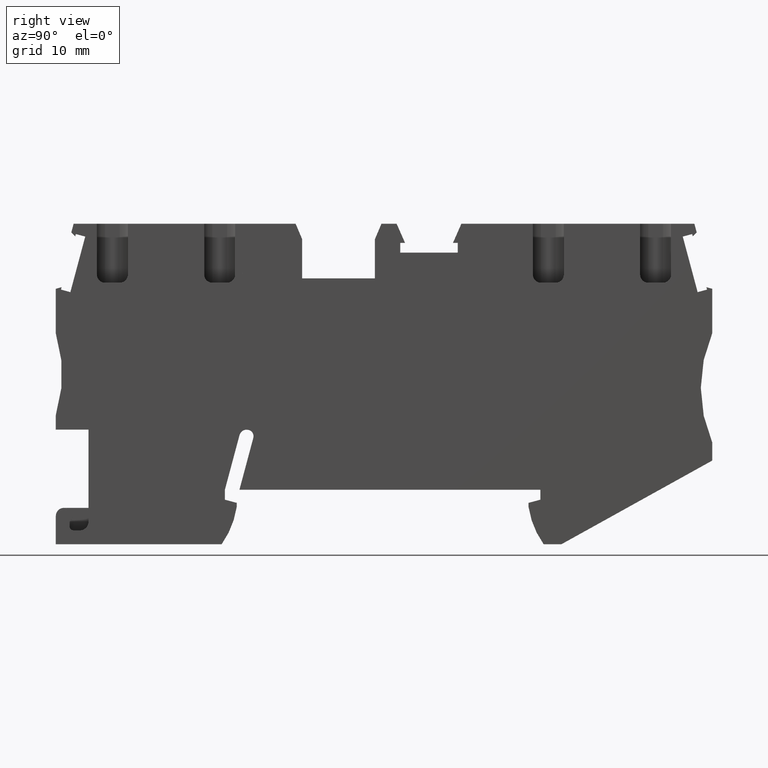
[diagram: clean part render]
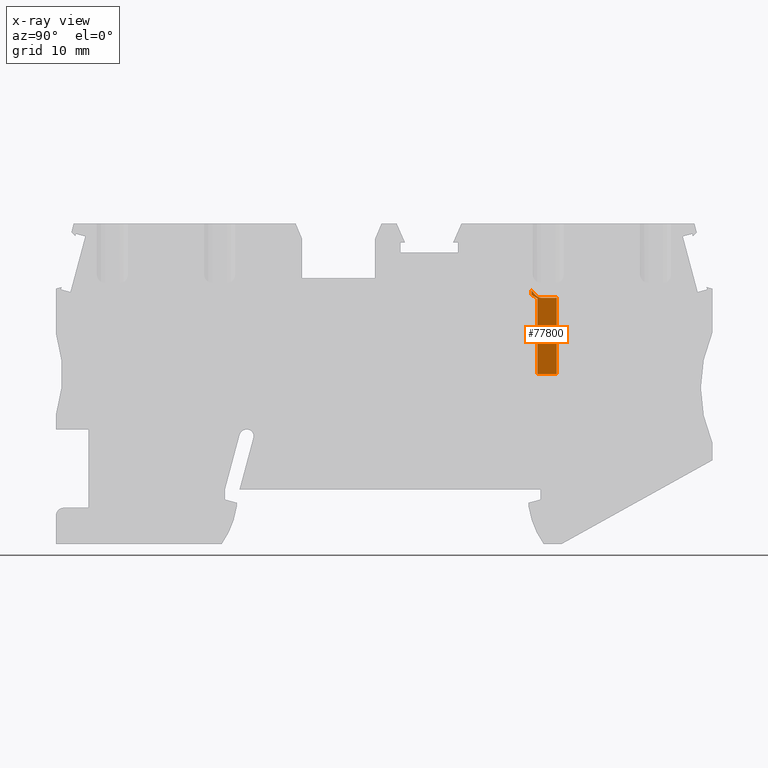
[diagram: x-ray — body ghosted, one internal face saturated and labeled with its STEP entity id]
A machine part, right view, then the same camera in x-ray: the body is ghosted and one INTERNAL B-rep face — a face not visible from any outside direction — is saturated and labeled: STEP entity #77800.
In plain terms, the highlighted planar face has unit normal (-1, -0, 0).
Its self-contained STEP definition (entity closure, byte-faithful):
#72460=CARTESIAN_POINT('',(48.2531802202803,27.0186885666316,
-0.949999999999982));
#72470=DIRECTION('',(0.992546151641337,0.121869343405031,
6.12323399573707E-17));
#72480=VECTOR('',#72470,1.);
#72490=LINE('',#72460,#72480);
#72500=CARTESIAN_POINT('',(50.5237340482183,27.2974775214011,
-0.949999999999982));
#72510=VERTEX_POINT('',#72500);
#72520=CARTESIAN_POINT('',(52.1118078908458,27.4924684708493,
-0.949999999999986));
#72530=VERTEX_POINT('',#72520);
#72540=EDGE_CURVE('',#72510,#72530,#72490,.T.);
#72850=CARTESIAN_POINT('',(50.3232043482887,28.9306608667258,
-1.89999999999998));
#72860=DIRECTION('',(-0.12186934340515,0.992546151641322,0.));
#72870=DIRECTION('',(6.07759233806769E-17,7.46234506576463E-18,1.));
#72880=AXIS2_PLACEMENT_3D('',#72850,#72860,#72870);
#72890=CONICAL_SURFACE('',#72880,1.9,0.523598775598299);
#73530=CARTESIAN_POINT('',(49.4442329776317,27.4735237091144,
-0.949999999999986));
#73540=VERTEX_POINT('',#73530);
#73590=CARTESIAN_POINT('',(52.7847745119688,0.266996196464501,
-0.949999999999983));
#73600=DIRECTION('',(-0.121869343405273,0.992546151641307,
2.6600174019898E-29));
#73610=VECTOR('',#73600,1.);
#73620=LINE('',#73590,#73610);
#73630=CARTESIAN_POINT('',(49.3831996676534,27.9706001261128,
-0.949999999999998));
#73640=VERTEX_POINT('',#73630);
#73650=EDGE_CURVE('',#73540,#73640,#73620,.T.);
#74500=CARTESIAN_POINT('',(50.1085498896161,27.1915379099944,
-0.949999999999986));
#74510=VERTEX_POINT('',#74500);
#74540=CARTESIAN_POINT('',(70.5695188718006,18.5063718618117,
-0.949999999999985));
#74550=DIRECTION('',(-0.92050485345244,0.390731128489274,
-5.25079780903808E-17));
#74560=VECTOR('',#74550,1.);
#74570=LINE('',#74540,#74560);
#74580=EDGE_CURVE('',#74510,#73540,#74570,.T.);
#74800=CARTESIAN_POINT('',(53.2601333610945,19.1657966601058,
-0.949999999999986));
#74810=VERTEX_POINT('',#74800);
#74860=CARTESIAN_POINT('',(68.8035129598135,21.0742836990817,
-0.949999999999986));
#74870=DIRECTION('',(0.992546151641322,0.121869343405148,
5.55111512312578E-17));
#74880=VECTOR('',#74870,1.);
#74890=LINE('',#74860,#74880);
#74900=CARTESIAN_POINT('',(51.1261589070501,18.903777543788,
-0.949999999999986));
#74910=VERTEX_POINT('',#74900);
#74920=EDGE_CURVE('',#74910,#74810,#74890,.T.);
#75480=CARTESIAN_POINT('',(53.4051156287255,0.343164508095485,
-0.949999999999986));
#75490=DIRECTION('',(-0.121869343405147,0.992546151641322,
9.12890793639505E-31));
#75500=VECTOR('',#75490,1.);
#75510=LINE('',#75480,#75500);
#75520=EDGE_CURVE('',#74910,#74510,#75510,.T.);
#75780=CARTESIAN_POINT('',(51.9112781909165,29.1256518161743,
-1.89999999999999));
#75790=DIRECTION('',(-0.121869343405146,0.992546151641322,0.));
#75800=DIRECTION('',(6.07759233806799E-17,7.46234506576581E-18,-1.));
#75810=AXIS2_PLACEMENT_3D('',#75780,#75790,#75800);
#75820=CONICAL_SURFACE('',#75810,1.9,0.5235987755983);
#76600=CARTESIAN_POINT('',(52.2341477215153,27.5217791388469,
-0.949999999999985));
#76610=VERTEX_POINT('',#76600);
#76640=CARTESIAN_POINT('',(52.4070479572577,26.113619721594,
-0.949999999999982));
#76650=DIRECTION('',(-0.121869343405264,0.992546151641308,
1.34044724128993E-31));
#76660=VECTOR('',#76650,1.);
#76670=LINE('',#76640,#76660);
#76680=EDGE_CURVE('',#74810,#76610,#76670,.T.);
#76800=CARTESIAN_POINT('',(48.2450128077607,25.6025860633,
-0.949999999999986));
#76810=DIRECTION('',(6.07759233806814E-17,7.46234506576586E-18,-1.));
#76820=DIRECTION('',(-0.992546151641308,-0.121869343405264,
-6.12323399573707E-17));
#76830=AXIS2_PLACEMENT_3D('',#76800,#76810,#76820);
#76840=PLANE('',#76830);
#76850=ORIENTED_EDGE('',*,*,#74580,.T.);
#76860=ORIENTED_EDGE('',*,*,#75520,.T.);
#76870=ORIENTED_EDGE('',*,*,#74920,.F.);
#76880=ORIENTED_EDGE('',*,*,#76680,.F.);
#76890=CARTESIAN_POINT('',(52.2341477215153,27.5217791388469,
-0.949999999999985));
#76900=CARTESIAN_POINT('',(52.2243286048633,27.5182571221954,
-0.949999999999985));
#76910=CARTESIAN_POINT('',(52.2143913061904,27.514979035826,
-0.94999999999999));
#76920=CARTESIAN_POINT('',(52.204351278239,27.5119665771281,
-0.94999999999999));
#76930=CARTESIAN_POINT('',(52.1943113548638,27.5089541498077,
-0.94999999999999));
#76940=CARTESIAN_POINT('',(52.184169070554,27.5062075615477,
-0.94999999999999));
#76950=CARTESIAN_POINT('',(52.1739445115164,27.50374473364,
-0.94999999999999));
#76960=CARTESIAN_POINT('',(52.1637200161161,27.5012819210608,
-0.94999999999999));
#76970=CARTESIAN_POINT('',(52.1534137223108,27.4991030547796,
-0.949999999999986));
#76980=CARTESIAN_POINT('',(52.1430491622221,27.4972205694267,
-0.949999999999986));
#76990=CARTESIAN_POINT('',(52.1326846238507,27.4953380880183,
-0.949999999999986));
#77000=CARTESIAN_POINT('',(52.1222623727399,27.4937521198183,
-0.949999999999986));
#77010=CARTESIAN_POINT('',(52.1118078908461,27.4924684708495,
-0.949999999999986));
#77020=B_SPLINE_CURVE_WITH_KNOTS('',3,(#76890,#76900,#76910,#76920,
#76930,#76940,#76950,#76960,#76970,#76980,#76990,#77000,#77010),
.UNSPECIFIED.,.F.,.F.,(4,3,3,3,4),(0.,0.0313742554317692,
0.0628769771654618,0.0944578973491981,0.126062875051535),.UNSPECIFIED.);
#77030=SURFACE_CURVE('',#77020,(#76840,#75820),.CURVE_3D.);
#77040=EDGE_CURVE('',#76610,#72530,#77030,.T.);
#77050=ORIENTED_EDGE('',*,*,#77040,.F.);
#77060=ORIENTED_EDGE('',*,*,#72540,.T.);
#77070=CARTESIAN_POINT('',(48.2450128077607,25.6025860633,
-0.949999999999982));
#77080=DIRECTION('',(6.07759233806814E-17,7.46234506576586E-18,-1.));
#77090=DIRECTION('',(-0.992546151641308,-0.121869343405264,
-6.12323399573707E-17));
#77100=AXIS2_PLACEMENT_3D('',#77070,#77080,#77090);
#77110=PLANE('',#77100);
#77120=CARTESIAN_POINT('',(49.3831996676534,27.9706001261128,
-0.949999999999982));
#77130=CARTESIAN_POINT('',(49.4032418743686,27.9504905522849,
-0.949999999999982));
#77140=CARTESIAN_POINT('',(49.4233912809308,27.9304916691446,
-0.949999999999983));
#77150=CARTESIAN_POINT('',(49.4436606879015,27.9106200651534,
-0.949999999999983));
#77160=CARTESIAN_POINT('',(49.4639300921487,27.8907484638323,
-0.949999999999983));
#77170=CARTESIAN_POINT('',(49.4843195087491,27.8710040413209,
-0.949999999999983));
#77180=CARTESIAN_POINT('',(49.5048445407737,27.8514062865202,
-0.949999999999983));
#77190=CARTESIAN_POINT('',(49.525369560351,27.8318085436044,
-0.949999999999983));
#77200=CARTESIAN_POINT('',(49.5460302228499,27.8123573263032,
-0.949999999999982));
#77210=CARTESIAN_POINT('',(49.5668454140725,27.7930760841352,
-0.949999999999982));
#77220=CARTESIAN_POINT('',(49.5876605772581,27.773794867938,
-0.949999999999982));
#77230=CARTESIAN_POINT('',(49.6086303222485,27.7546834252601,
-0.949999999999983));
#77240=CARTESIAN_POINT('',(49.6297773704294,27.7357706423969,
-0.949999999999983));
#77250=CARTESIAN_POINT('',(49.6509292953259,27.7168534980614,
-0.949999999999983));
#77260=CARTESIAN_POINT('',(49.6722355038122,27.6981546954581,
-0.950000000020112));
#77270=CARTESIAN_POINT('',(49.6937955058014,27.6796486818954,
-0.950000000020112));
#77280=CARTESIAN_POINT('',(49.7153547711985,27.6611433005861,
-0.950000000020112));
#77290=CARTESIAN_POINT('',(49.7371537385636,27.6428437104652,
-0.949999999999983));
#77300=CARTESIAN_POINT('',(49.7591990701041,27.6248213360605,
-0.949999999999983));
#77310=CARTESIAN_POINT('',(49.7812444695167,27.6067989061694,
-0.949999999999983));
#77320=CARTESIAN_POINT('',(49.8035363151553,27.5890532986218,
-0.949999999999982));
#77330=CARTESIAN_POINT('',(49.8260912506335,27.571663284138,
-0.949999999999982));
#77340=CARTESIAN_POINT('',(49.8486462400517,27.5542732280661,
-0.949999999999982));
#77350=CARTESIAN_POINT('',(49.8714646480005,27.5372380414438,
-0.949999999999982));
#77360=CARTESIAN_POINT('',(49.8945756582543,27.5206478176664,
-0.949999999999982));
#77370=CARTESIAN_POINT('',(49.917686626267,27.5040576242118,
-0.949999999999982));
#77380=CARTESIAN_POINT('',(49.9410909938208,27.4879111712678,
-0.949999999999982));
#77390=CARTESIAN_POINT('',(49.9648319735351,27.4723172026655,
-0.949999999999982));
#77400=CARTESIAN_POINT('',(49.988572679284,27.4567234140138,
-0.949999999999982));
#77410=CARTESIAN_POINT('',(50.0126516608409,27.4416801804745,
-0.949999999999982));
#77420=CARTESIAN_POINT('',(50.0371252024779,27.4273266935671,
-0.949999999999982));
#77430=CARTESIAN_POINT('',(50.0493620164955,27.4201499247775,
-0.949999999999982));
#77440=CARTESIAN_POINT('',(50.0616979201272,27.4131459973636,
-0.950000000003034));
#77450=CARTESIAN_POINT('',(50.0741410101666,27.4063363198144,
-0.950000000003034));
#77460=CARTESIAN_POINT('',(50.0865829995554,27.3995272446136,
-0.950000000003034));
#77470=CARTESIAN_POINT('',(50.0991306104522,27.3929126394726,
-0.950000000003997));
#77480=CARTESIAN_POINT('',(50.1118309169296,27.3864993241653,
-0.950000000003997));
#77490=CARTESIAN_POINT('',(50.1372231232961,27.3736769386531,
-0.950000000003997));
#77500=CARTESIAN_POINT('',(50.16315135342,27.361698963764,
-0.949999999999982));
#77510=CARTESIAN_POINT('',(50.1895386290441,27.3508820907408,
-0.949999999999982));
#77520=CARTESIAN_POINT('',(50.2159260120822,27.3400651736855,
-0.949999999999982));
#77530=CARTESIAN_POINT('',(50.2427738821678,27.3304093663007,
-0.949999999999983));
#77540=CARTESIAN_POINT('',(50.2700104098669,27.3222412470516,
-0.949999999999983));
#77550=CARTESIAN_POINT('',(50.2836287136532,27.3181571754501,
-0.949999999999983));
#77560=CARTESIAN_POINT('',(50.2973442602815,27.3144451372266,
-0.950000000000281));
#77570=CARTESIAN_POINT('',(50.3111479980604,27.3111460526035,
-0.950000000000281));
#77580=CARTESIAN_POINT('',(50.3249506179006,27.307847235167,
-0.950000000000281));
#77590=CARTESIAN_POINT('',(50.3388324941843,27.3049614152967,
-0.950000000000099));
#77600=CARTESIAN_POINT('',(50.3528779525696,27.3025169575386,
-0.950000000000099));
#77610=CARTESIAN_POINT('',(50.3669147973373,27.3000739988861,
-0.950000000000099));
#77620=CARTESIAN_POINT('',(50.381074964911,27.2980819212438,
-0.950000000000762));
#77630=CARTESIAN_POINT('',(50.3953076685453,27.2965906139734,
-0.950000000000762));
#77640=CARTESIAN_POINT('',(50.4095402512969,27.2950993193692,
-0.950000000000762));
#77650=CARTESIAN_POINT('',(50.4238438479212,27.2941092797338,
-0.950000000000354));
#77660=CARTESIAN_POINT('',(50.4381611169577,27.2936555584943,
-0.950000000000354));
#77670=CARTESIAN_POINT('',(50.4524784010741,27.293201836777,
-0.950000000000354));
#77680=CARTESIAN_POINT('',(50.466807292874,27.2932846902456,
-0.950000000000008));
#77690=CARTESIAN_POINT('',(50.4810891252333,27.2939198954276,
-0.950000000000008));
#77700=CARTESIAN_POINT('',(50.495371137557,27.2945551086138,
-0.950000000000008));
#77710=CARTESIAN_POINT('',(50.5096037331313,27.2957425368677,
-0.949999999999982));
#77720=CARTESIAN_POINT('',(50.5237340482183,27.2974775214011,
-0.949999999999982));
#77730=B_SPLINE_CURVE_WITH_KNOTS('',3,(#77120,#77130,#77140,#77150,
#77160,#77170,#77180,#77190,#77200,#77210,#77220,#77230,#77240,#77250,
#77260,#77270,#77280,#77290,#77300,#77310,#77320,#77330,#77340,#77350,
#77360,#77370,#77380,#77390,#77400,#77410,#77420,#77430,#77440,#77450,
#77460,#77470,#77480,#77490,#77500,#77510,#77520,#77530,#77540,#77550,
#77560,#77570,#77580,#77590,#77600,#77610,#77620,#77630,#77640,#77650,
#77660,#77670,#77680,#77690,#77700,#77710,#77720),.UNSPECIFIED.,.F.,.F.,
(4,3,3,3,3,3,3,3,3,3,3,3,3,3,3,3,3,3,3,3,4),(0.,0.0851658607725703,
0.170311856876341,0.255439167752964,0.340553967852858,0.425690602272651,
0.511037034314697,0.596481970492738,0.681883393148672,0.767164333711297,
0.852323083393694,0.894877739825186,0.93747118219983,1.02297461651132,
1.10842523773934,1.15103852222361,1.19365820718898,1.23650803748706,
1.27947134590103,1.32241053587822,1.36521437174953),.UNSPECIFIED.);
#77740=SURFACE_CURVE('',#77730,(#72890,#77110),.CURVE_3D.);
#77750=EDGE_CURVE('',#73640,#72510,#77740,.T.);
#77760=ORIENTED_EDGE('',*,*,#77750,.T.);
#77770=ORIENTED_EDGE('',*,*,#73650,.T.);
#77780=EDGE_LOOP('',(#77770,#77760,#77060,#77050,#76880,#76870,#76860,
#76850));
#77790=FACE_OUTER_BOUND('',#77780,.T.);
#77800=ADVANCED_FACE('',(#77790),#76840,.T.);